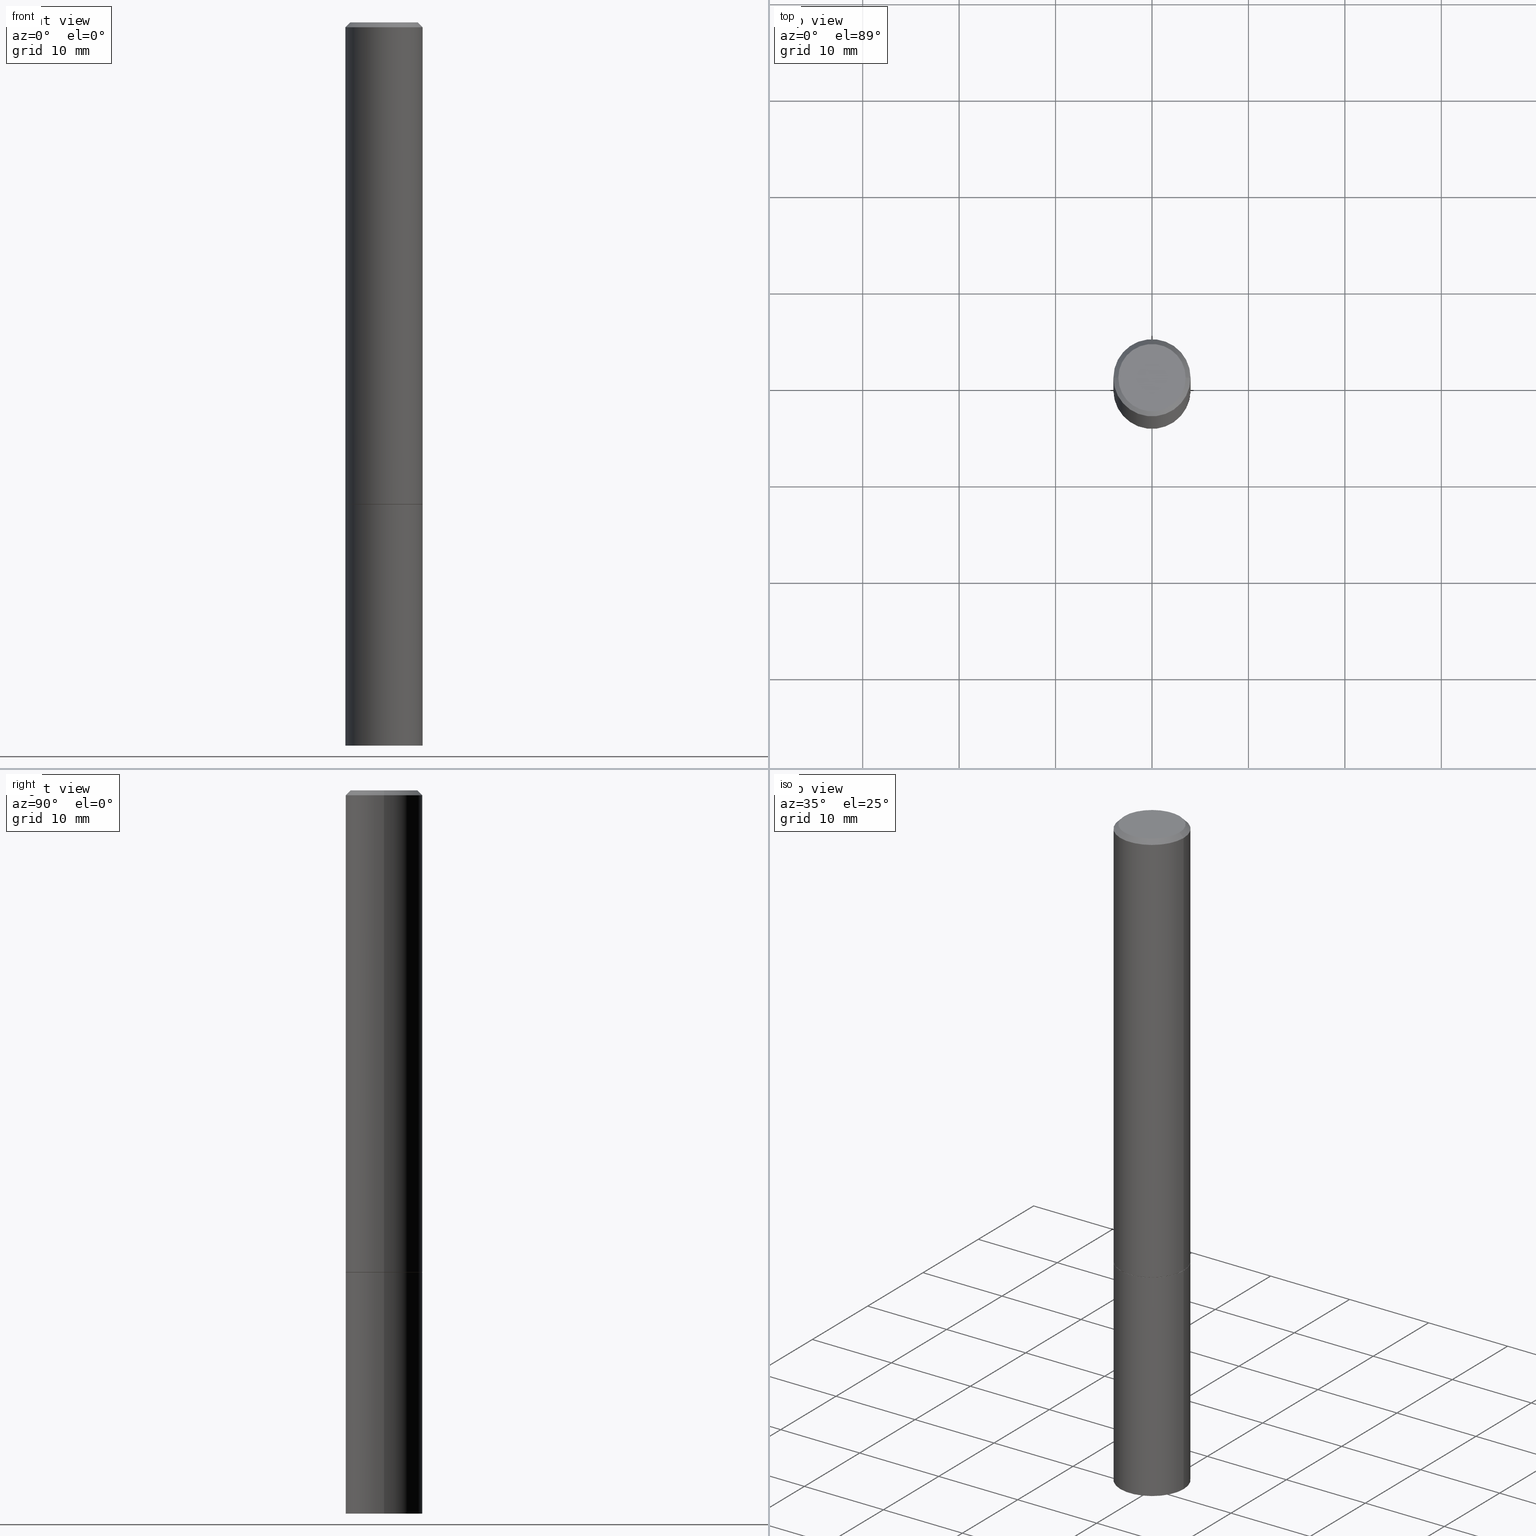
[diagram: canonical four-view strip — front | top / right | iso, engineering-drawing reading convention]
A machine part, canonical four-view strip (front | top / right | iso — engineering-drawing reading convention). The complete STEP part file that produces these views, byte-faithful:
ISO-10303-21;
HEADER;
FILE_DESCRIPTION (( 'STEP AP203' ),
    '1' );
FILE_NAME ('70555.STEP',
    '2024-02-29T03:45:22',
    ( '' ),
    ( '' ),
    'SwSTEP 2.0',
    'SolidWorks 2023',
    '' );
FILE_SCHEMA (( 'CONFIG_CONTROL_DESIGN' ));
ENDSEC;

DATA;
#1 = DIRECTION ( 'NONE',  ( 1.000000000000000000, -6.982962677686261977E-15, 0.000000000000000000 ) ) ;
#2 = ORIENTED_EDGE ( 'NONE', *, *, #163, .T. ) ;
#3 = CALENDAR_DATE ( 2024, 28, 2 ) ;
#4 = PERSON_AND_ORGANIZATION ( #186, #347 ) ;
#5 = AXIS2_PLACEMENT_3D ( 'NONE', #322, #22, #187 ) ;
#6 = CARTESIAN_POINT ( 'NONE',  ( 4.813905344975440714E-29, -6.872981015512730918E-15, -1.968499999999999694 ) ) ;
#7 = EDGE_CURVE ( 'NONE', #41, #267, #106, .T. ) ;
#8 = FACE_OUTER_BOUND ( 'NONE', #237, .T. ) ;
#9 = CARTESIAN_POINT ( 'NONE',  ( 4.811459876169255671E-29, -6.869489534173887122E-15, -1.967499999999999805 ) ) ;
#10 = CARTESIAN_POINT ( 'NONE',  ( 7.220980290903470182E-29, -1.030964609733603853E-14, -2.952799999999999869 ) ) ;
#11 = AXIS2_PLACEMENT_3D ( 'NONE', #257, #98, #302 ) ;
#12 = DIRECTION ( 'NONE',  ( 1.000000000000000000, -6.982962677686265922E-15, 4.876176775795935793E-29 ) ) ;
#13 = VERTEX_POINT ( 'NONE', #139 ) ;
#14 = PERSON_AND_ORGANIZATION ( #186, #347 ) ;
#15 = DIRECTION ( 'NONE',  ( -1.000000000000000000, 6.982962677686266711E-15, 0.000000000000000000 ) ) ;
#16 = CARTESIAN_POINT ( 'NONE',  ( 0.000000000000000000, 0.000000000000000000, 0.000000000000000000 ) ) ;
#17 = ORIENTED_EDGE ( 'NONE', *, *, #274, .F. ) ;
#18 = EDGE_CURVE ( 'NONE', #97, #140, #229, .T. ) ;
#19 =( NAMED_UNIT ( * ) SI_UNIT ( $, .STERADIAN. ) SOLID_ANGLE_UNIT ( ) );
#20 = DIRECTION ( 'NONE',  ( 1.000000000000000000, -6.982962677686267499E-15, 0.000000000000000000 ) ) ;
#21 = ORIENTED_EDGE ( 'NONE', *, *, #281, .T. ) ;
#22 = DIRECTION ( 'NONE',  ( -2.445468806185136597E-29, 3.491481338843145583E-15, 1.000000000000000000 ) ) ;
#23 = APPROVAL_PERSON_ORGANIZATION ( #173, #222, #149 ) ;
#24 = DIRECTION ( 'NONE',  ( -2.445468806185136597E-29, 3.491481338843145583E-15, 1.000000000000000000 ) ) ;
#25 = FACE_OUTER_BOUND ( 'NONE', #355, .T. ) ;
#26 = VECTOR ( 'NONE', #176, 39.37007874015748143 ) ;
#27 = EDGE_CURVE ( 'NONE', #330, #140, #115, .T. ) ;
#28 = EDGE_LOOP ( 'NONE', ( #21, #135 ) ) ;
#29 = LOCAL_TIME ( 22, 45, 22.00000000000000000, #121 ) ;
#30 = FACE_OUTER_BOUND ( 'NONE', #166, .T. ) ;
#31 = COORDINATED_UNIVERSAL_TIME_OFFSET ( 5, 0, .BEHIND. ) ;
#32 = CARTESIAN_POINT ( 'NONE',  ( -0.1575000000000000011, -2.350554771653214846E-15, -1.967499999999999805 ) ) ;
#33 = PERSON_AND_ORGANIZATION_ROLE ( 'design_owner' ) ;
#34 = CYLINDRICAL_SURFACE ( 'NONE', #288, 0.1575000000000000011 ) ;
#35 = ORIENTED_EDGE ( 'NONE', *, *, #56, .T. ) ;
#36 = PRODUCT_DEFINITION_FORMATION_WITH_SPECIFIED_SOURCE ( 'ANY', '', #338, .NOT_KNOWN. ) ;
#37 = CARTESIAN_POINT ( 'NONE',  ( 4.890937612370281041E-31, -6.982962677686302702E-17, -0.02000000000000003511 ) ) ;
#38 = EDGE_CURVE ( 'NONE', #97, #159, #75, .T. ) ;
#39 = CALENDAR_DATE ( 2024, 28, 2 ) ;
#40 = CARTESIAN_POINT ( 'NONE',  ( -2.087702828670435750E-46, 2.980686340760889474E-32, 8.537024980200807150E-18 ) ) ;
#41 = VERTEX_POINT ( 'NONE', #228 ) ;
#42 = DIRECTION ( 'NONE',  ( -2.438088387897960049E-29, 3.491481338843145188E-15, 1.000000000000000000 ) ) ;
#43 = EDGE_CURVE ( 'NONE', #100, #287, #172, .T. ) ;
#44 = DIRECTION ( 'NONE',  ( 1.000000000000000000, -6.982962677686266711E-15, 0.000000000000000000 ) ) ;
#45 = CONICAL_SURFACE ( 'NONE', #11, 0.1565000000000000002, 0.7853981633972775267 ) ;
#46 = ORIENTED_EDGE ( 'NONE', *, *, #18, .F. ) ;
#47 = CIRCLE ( 'NONE', #251, 0.1575000000000000011 ) ;
#48 = CIRCLE ( 'NONE', #87, 0.1574999999999997513 ) ;
#49 = CC_DESIGN_PERSON_AND_ORGANIZATION_ASSIGNMENT ( #14, #238, ( #36 ) ) ;
#50 = CALENDAR_DATE ( 2024, 28, 2 ) ;
#51 = DIRECTION ( 'NONE',  ( -2.445468806185136877E-29, 3.491481338843145188E-15, 1.000000000000000000 ) ) ;
#52 = LOCAL_TIME ( 22, 45, 22.00000000000000000, #89 ) ;
#53 = APPLICATION_CONTEXT ( 'configuration controlled 3d designs of mechanical parts and assemblies' ) ;
#54 = DIRECTION ( 'NONE',  ( 1.000000000000000000, -6.982962677686267499E-15, 0.000000000000000000 ) ) ;
#55 = DIRECTION ( 'NONE',  ( -2.445468806185136597E-29, 3.491481338843145583E-15, 1.000000000000000000 ) ) ;
#56 = EDGE_CURVE ( 'NONE', #151, #287, #112, .T. ) ;
#57 = AXIS2_PLACEMENT_3D ( 'NONE', #99, #260, #158 ) ;
#58 =( GEOMETRIC_REPRESENTATION_CONTEXT ( 3 ) GLOBAL_UNCERTAINTY_ASSIGNED_CONTEXT ( ( #296 ) ) GLOBAL_UNIT_ASSIGNED_CONTEXT ( ( #70, #94, #19 ) ) REPRESENTATION_CONTEXT ( 'NONE', 'WORKASPACE' ) );
#59 = ORIENTED_EDGE ( 'NONE', *, *, #7, .T. ) ;
#60 = CARTESIAN_POINT ( 'NONE',  ( 0.1565000000000000002, -7.965814674570632384E-15, -1.968500000000000139 ) ) ;
#61 = CALENDAR_DATE ( 2024, 28, 2 ) ;
#62 = FACE_OUTER_BOUND ( 'NONE', #275, .T. ) ;
#63 = ORIENTED_EDGE ( 'NONE', *, *, #136, .F. ) ;
#64 = CIRCLE ( 'NONE', #278, 0.1374999999999997613 ) ;
#65 = DIRECTION ( 'NONE',  ( 1.000000000000000000, 0.000000000000000000, 0.000000000000000000 ) ) ;
#66 = MANIFOLD_SOLID_BREP ( 'Body-Move/Copy2[1]', #127 ) ;
#67 = APPROVAL_DATE_TIME ( #155, #170 ) ;
#68 = DIRECTION ( 'NONE',  ( -0.7071067811864267805, 7.493145998869918709E-15, 0.7071067811866682540 ) ) ;
#69 = ORIENTED_EDGE ( 'NONE', *, *, #27, .F. ) ;
#70 =( CONVERSION_BASED_UNIT ( 'INCH', #181 ) LENGTH_UNIT ( ) NAMED_UNIT ( #286 ) );
#71 = LINE ( 'NONE', #148, #335 ) ;
#72 = CALENDAR_DATE ( 2024, 28, 2 ) ;
#73 = VERTEX_POINT ( 'NONE', #196 ) ;
#74 = CIRCLE ( 'NONE', #145, 0.1574999999999997513 ) ;
#75 = CIRCLE ( 'NONE', #363, 0.1575000000000000011 ) ;
#76 = AXIS2_PLACEMENT_3D ( 'NONE', #16, #84, #65 ) ;
#77 = CARTESIAN_POINT ( 'NONE',  ( -2.087702828670435750E-46, 2.980686340760889474E-32, 8.537024980200807150E-18 ) ) ;
#78 = ADVANCED_FACE ( 'NONE', ( #311 ), #113, .F. ) ;
#79 = APPLICATION_CONTEXT ( 'configuration controlled 3d designs of mechanical parts and assemblies' ) ;
#80 = DIRECTION ( 'NONE',  ( -2.445468806185136597E-29, 3.491481338843145583E-15, 1.000000000000000000 ) ) ;
#81 = EDGE_CURVE ( 'NONE', #41, #125, #169, .T. ) ;
#82 = CARTESIAN_POINT ( 'NONE',  ( 4.813905344975441835E-29, -6.872981015512731707E-15, -1.968500000000000139 ) ) ;
#83 = ORIENTED_EDGE ( 'NONE', *, *, #281, .F. ) ;
#84 = DIRECTION ( 'NONE',  ( 0.000000000000000000, 0.000000000000000000, 1.000000000000000000 ) ) ;
#85 = DIRECTION ( 'NONE',  ( -1.000000000000000000, 6.982962677686265922E-15, -4.876176775795935793E-29 ) ) ;
#86 = AXIS2_PLACEMENT_3D ( 'NONE', #6, #253, #282 ) ;
#87 = AXIS2_PLACEMENT_3D ( 'NONE', #304, #107, #44 ) ;
#88 = DIRECTION ( 'NONE',  ( -2.445468806185136597E-29, 3.491481338843145583E-15, 1.000000000000000000 ) ) ;
#89 = COORDINATED_UNIVERSAL_TIME_OFFSET ( 5, 0, .BEHIND. ) ;
#90 = PERSON_AND_ORGANIZATION ( #186, #347 ) ;
#91 = CIRCLE ( 'NONE', #235, 0.1575000000000000011 ) ;
#92 = FACE_OUTER_BOUND ( 'NONE', #123, .T. ) ;
#93 = EDGE_CURVE ( 'NONE', #159, #330, #71, .T. ) ;
#94 =( NAMED_UNIT ( * ) PLANE_ANGLE_UNIT ( ) SI_UNIT ( $, .RADIAN. ) );
#95 = DATE_AND_TIME ( #72, #120 ) ;
#96 = DIRECTION ( 'NONE',  ( -2.445468806185136597E-29, 3.491481338843145583E-15, 1.000000000000000000 ) ) ;
#97 = VERTEX_POINT ( 'NONE', #350 ) ;
#98 = DIRECTION ( 'NONE',  ( -2.445468806185136597E-29, 3.491481338843145583E-15, 1.000000000000000000 ) ) ;
#99 = CARTESIAN_POINT ( 'NONE',  ( 0.000000000000000000, 0.000000000000000000, 0.000000000000000000 ) ) ;
#100 = VERTEX_POINT ( 'NONE', #332 ) ;
#101 = VECTOR ( 'NONE', #150, 39.37007874015748143 ) ;
#102 = DIRECTION ( 'NONE',  ( 0.7071067811864267805, -2.468850131080992517E-15, 0.7071067811866682540 ) ) ;
#103 = ORIENTED_EDGE ( 'NONE', *, *, #320, .T. ) ;
#104 = CARTESIAN_POINT ( 'NONE',  ( -0.1574999999999998901, 1.119104808822157012E-15, -7.747322767151471379E-30 ) ) ;
#105 = EDGE_LOOP ( 'NONE', ( #177, #162, #103, #184 ) ) ;
#106 = CIRCLE ( 'NONE', #248, 0.1565000000000000002 ) ;
#107 = DIRECTION ( 'NONE',  ( -2.445468806185136597E-29, 3.491481338843145583E-15, 1.000000000000000000 ) ) ;
#108 = ORIENTED_EDGE ( 'NONE', *, *, #7, .F. ) ;
#109 = CYLINDRICAL_SURFACE ( 'NONE', #146, 0.1574999999999998901 ) ;
#110 = CIRCLE ( 'NONE', #119, 0.1374999999999997613 ) ;
#111 = EDGE_CURVE ( 'NONE', #267, #151, #245, .T. ) ;
#112 = LINE ( 'NONE', #223, #272 ) ;
#113 = PLANE ( 'NONE',  #132 ) ;
#114 = DIRECTION ( 'NONE',  ( 1.000000000000000000, -6.982962677686267499E-15, 0.000000000000000000 ) ) ;
#115 = CIRCLE ( 'NONE', #86, 0.1575000000000000011 ) ;
#116 = APPROVAL ( #165, 'UNSPECIFIED' ) ;
#117 = ORIENTED_EDGE ( 'NONE', *, *, #215, .T. ) ;
#118 = DIRECTION ( 'NONE',  ( 1.000000000000000000, -6.982962677686265922E-15, 4.876173381029109010E-29 ) ) ;
#119 = AXIS2_PLACEMENT_3D ( 'NONE', #77, #24, #247 ) ;
#120 = LOCAL_TIME ( 22, 45, 22.00000000000000000, #358 ) ;
#121 = COORDINATED_UNIVERSAL_TIME_OFFSET ( 5, 0, .BEHIND. ) ;
#122 = DIRECTION ( 'NONE',  ( 2.438088387897960049E-29, -3.491481338843145188E-15, -1.000000000000000000 ) ) ;
#123 = EDGE_LOOP ( 'NONE', ( #17, #108 ) ) ;
#124 = CARTESIAN_POINT ( 'NONE',  ( 4.813905344975441835E-29, -6.872981015512731707E-15, -1.968500000000000139 ) ) ;
#125 = VERTEX_POINT ( 'NONE', #32 ) ;
#126 = CYLINDRICAL_SURFACE ( 'NONE', #57, 0.1574999999999998901 ) ;
#127 = CLOSED_SHELL ( 'NONE', ( #141, #252, #314, #294 ) ) ;
#128 = PERSON_AND_ORGANIZATION ( #186, #347 ) ;
#129 = FACE_OUTER_BOUND ( 'NONE', #262, .T. ) ;
#130 = ORIENTED_EDGE ( 'NONE', *, *, #147, .T. ) ;
#131 = CARTESIAN_POINT ( 'NONE',  ( 0.000000000000000000, 0.000000000000000000, 0.000000000000000000 ) ) ;
#132 = AXIS2_PLACEMENT_3D ( 'NONE', #225, #345, #85 ) ;
#133 = CC_DESIGN_APPROVAL ( #116, ( #36 ) ) ;
#134 = FACE_OUTER_BOUND ( 'NONE', #171, .T. ) ;
#135 = ORIENTED_EDGE ( 'NONE', *, *, #198, .T. ) ;
#136 = EDGE_CURVE ( 'NONE', #151, #125, #47, .T. ) ;
#137 = DIRECTION ( 'NONE',  ( 0.7071067811865466846, -7.319954787623252890E-15, -0.7071067811865483499 ) ) ;
#138 = AXIS2_PLACEMENT_3D ( 'NONE', #365, #191, #307 ) ;
#139 = CARTESIAN_POINT ( 'NONE',  ( -0.1374999999999997613, 9.950721815702909552E-16, 8.537024980193970869E-18 ) ) ;
#140 = VERTEX_POINT ( 'NONE', #300 ) ;
#141 = ADVANCED_FACE ( 'NONE', ( #153 ), #34, .T. ) ;
#142 = APPLICATION_PROTOCOL_DEFINITION ( 'international standard', 'config_control_design', 1994, #53 ) ;
#143 = DIRECTION ( 'NONE',  ( -2.445468806185136597E-29, 3.491481338843145583E-15, 1.000000000000000000 ) ) ;
#144 = CARTESIAN_POINT ( 'NONE',  ( 7.220980290903470182E-29, -1.030964609733603853E-14, -2.952799999999999869 ) ) ;
#145 = AXIS2_PLACEMENT_3D ( 'NONE', #352, #96, #326 ) ;
#146 = AXIS2_PLACEMENT_3D ( 'NONE', #220, #80, #194 ) ;
#147 = EDGE_CURVE ( 'NONE', #125, #73, #292, .T. ) ;
#148 = CARTESIAN_POINT ( 'NONE',  ( 0.1575000000000000011, -1.099816621735586889E-15, 7.679978421878598033E-30 ) ) ;
#149 = APPROVAL_ROLE ( '' ) ;
#150 = DIRECTION ( 'NONE',  ( -2.445468806185136877E-29, 3.491481338843145188E-15, 1.000000000000000000 ) ) ;
#151 = VERTEX_POINT ( 'NONE', #213 ) ;
#152 = CIRCLE ( 'NONE', #226, 0.1575000000000000011 ) ;
#153 = FACE_OUTER_BOUND ( 'NONE', #348, .T. ) ;
#154 = ORIENTED_EDGE ( 'NONE', *, *, #56, .F. ) ;
#155 = DATE_AND_TIME ( #39, #29 ) ;
#156 = CARTESIAN_POINT ( 'NONE',  ( -0.1574999999999997513, 1.029986994958722210E-15, -0.02000000000000003511 ) ) ;
#157 = ORIENTED_EDGE ( 'NONE', *, *, #27, .T. ) ;
#158 = DIRECTION ( 'NONE',  ( 1.000000000000000000, -6.982962677686266711E-15, 4.876176775795935793E-29 ) ) ;
#159 = VERTEX_POINT ( 'NONE', #303 ) ;
#160 = AXIS2_PLACEMENT_3D ( 'NONE', #37, #264, #15 ) ;
#161 = PRODUCT_DEFINITION_SHAPE ( 'NONE', 'NONE',  #240 ) ;
#162 = ORIENTED_EDGE ( 'NONE', *, *, #43, .T. ) ;
#163 = EDGE_CURVE ( 'NONE', #125, #151, #152, .T. ) ;
#164 = CIRCLE ( 'NONE', #5, 0.1575000000000000011 ) ;
#165 = APPROVAL_STATUS ( 'not_yet_approved' ) ;
#166 = EDGE_LOOP ( 'NONE', ( #323, #83, #208, #200 ) ) ;
#167 = DATE_AND_TIME ( #50, #299 ) ;
#168 = ORIENTED_EDGE ( 'NONE', *, *, #147, .F. ) ;
#169 = LINE ( 'NONE', #333, #346 ) ;
#170 = APPROVAL ( #210, 'UNSPECIFIED' ) ;
#171 = EDGE_LOOP ( 'NONE', ( #46, #205, #212, #297 ) ) ;
#172 = LINE ( 'NONE', #289, #209 ) ;
#173 = PERSON_AND_ORGANIZATION ( #186, #347 ) ;
#174 = PLANE ( 'NONE',  #308 ) ;
#175 = ORIENTED_EDGE ( 'NONE', *, *, #81, .F. ) ;
#176 = DIRECTION ( 'NONE',  ( -0.7071067811865466846, 2.468850131082247989E-15, -0.7071067811865483499 ) ) ;
#177 = ORIENTED_EDGE ( 'NONE', *, *, #198, .F. ) ;
#178 = VECTOR ( 'NONE', #102, 39.37007874015748143 ) ;
#179 = SECURITY_CLASSIFICATION_LEVEL ( 'unclassified' ) ;
#180 = SECURITY_CLASSIFICATION ( '', '', #179 ) ;
#181 = LENGTH_MEASURE_WITH_UNIT ( LENGTH_MEASURE( 0.02539999999999999897 ), #324 );
#182 = DIRECTION ( 'NONE',  ( 1.000000000000000000, -6.982962677686268288E-15, 0.000000000000000000 ) ) ;
#183 = CC_DESIGN_DATE_AND_TIME_ASSIGNMENT ( #95, #325, ( #240 ) ) ;
#184 = ORIENTED_EDGE ( 'NONE', *, *, #230, .F. ) ;
#185 = DIRECTION ( 'NONE',  ( 2.445468806185136597E-29, -3.491481338843145583E-15, -1.000000000000000000 ) ) ;
#186 = PERSON ( 'UNSPECIFIED', 'UNSPECIFIED', 'UNSPECIFIED', ('UNSPECIFIED'), ('UNSPECIFIED'), ('UNSPECIFIED') ) ;
#187 = DIRECTION ( 'NONE',  ( 1.000000000000000000, -6.982962677686268288E-15, 0.000000000000000000 ) ) ;
#188 = APPLICATION_PROTOCOL_DEFINITION ( 'international standard', 'config_control_design', 1994, #79 ) ;
#189 = ORIENTED_EDGE ( 'NONE', *, *, #320, .F. ) ;
#190 = AXIS2_PLACEMENT_3D ( 'NONE', #131, #310, #362 ) ;
#191 = DIRECTION ( 'NONE',  ( 2.438088387897960049E-29, -3.491481338843145188E-15, -1.000000000000000000 ) ) ;
#192 = ADVANCED_BREP_SHAPE_REPRESENTATION ( '70555', ( #66, #193, #76 ), #58 ) ;
#193 = MANIFOLD_SOLID_BREP ( 'Body-Move/Copy2[2]', #221 ) ;
#194 = DIRECTION ( 'NONE',  ( 1.000000000000000000, -6.982962677686266711E-15, 4.876176775795935793E-29 ) ) ;
#195 = CC_DESIGN_APPROVAL ( #222, ( #180 ) ) ;
#196 = CARTESIAN_POINT ( 'NONE',  ( -0.1574999999999997513, 1.029986994958722210E-15, -0.02000000000000003511 ) ) ;
#197 = AXIS2_PLACEMENT_3D ( 'NONE', #82, #143, #54 ) ;
#198 = EDGE_CURVE ( 'NONE', #100, #13, #64, .T. ) ;
#199 = PERSON_AND_ORGANIZATION_ROLE ( 'design_supplier' ) ;
#200 = ORIENTED_EDGE ( 'NONE', *, *, #259, .T. ) ;
#201 = ADVANCED_FACE ( 'NONE', ( #92 ), #202, .F. ) ;
#202 = PLANE ( 'NONE',  #329 ) ;
#203 = ORIENTED_EDGE ( 'NONE', *, *, #361, .T. ) ;
#204 = LINE ( 'NONE', #156, #26 ) ;
#205 = ORIENTED_EDGE ( 'NONE', *, *, #38, .T. ) ;
#206 = DIRECTION ( 'NONE',  ( -2.445468806185136597E-29, 3.491481338843145583E-15, 1.000000000000000000 ) ) ;
#207 = CARTESIAN_POINT ( 'NONE',  ( 4.813905344975441835E-29, -6.872981015512731707E-15, -1.968500000000000139 ) ) ;
#208 = ORIENTED_EDGE ( 'NONE', *, *, #230, .T. ) ;
#209 = VECTOR ( 'NONE', #137, 39.37007874015748143 ) ;
#210 = APPROVAL_STATUS ( 'not_yet_approved' ) ;
#211 = DIRECTION ( 'NONE',  ( -2.445468806185136597E-29, 3.491481338843145583E-15, 1.000000000000000000 ) ) ;
#212 = ORIENTED_EDGE ( 'NONE', *, *, #93, .T. ) ;
#213 = CARTESIAN_POINT ( 'NONE',  ( 0.1575000000000000011, -7.969306155909475391E-15, -1.967499999999999805 ) ) ;
#214 = ORIENTED_EDGE ( 'NONE', *, *, #163, .F. ) ;
#215 = EDGE_CURVE ( 'NONE', #140, #330, #164, .T. ) ;
#216 = PRODUCT_RELATED_PRODUCT_CATEGORY ( 'detail', '', ( #338 ) ) ;
#217 = VECTOR ( 'NONE', #254, 39.37007874015748143 ) ;
#218 = CC_DESIGN_SECURITY_CLASSIFICATION ( #180, ( #36 ) ) ;
#219 = FACE_OUTER_BOUND ( 'NONE', #246, .T. ) ;
#220 = CARTESIAN_POINT ( 'NONE',  ( 0.000000000000000000, 0.000000000000000000, 0.000000000000000000 ) ) ;
#221 = CLOSED_SHELL ( 'NONE', ( #349, #336, #268, #343, #224, #340, #201, #78 ) ) ;
#222 = APPROVAL ( #351, 'UNSPECIFIED' ) ;
#223 = CARTESIAN_POINT ( 'NONE',  ( 0.1574999999999998901, -1.099816621735586297E-15, 7.679978421878593829E-30 ) ) ;
#224 = ADVANCED_FACE ( 'NONE', ( #62 ), #126, .T. ) ;
#225 = CARTESIAN_POINT ( 'NONE',  ( 9.601573681818598978E-16, 0.1374999999999997613, -4.758101716008312971E-16 ) ) ;
#226 = AXIS2_PLACEMENT_3D ( 'NONE', #9, #270, #356 ) ;
#227 = DATE_AND_TIME ( #3, #52 ) ;
#228 = CARTESIAN_POINT ( 'NONE',  ( -0.1565000000000000002, -5.755683179699952710E-15, -1.968500000000000139 ) ) ;
#229 = LINE ( 'NONE', #318, #217 ) ;
#230 = EDGE_CURVE ( 'NONE', #13, #73, #204, .T. ) ;
#231 = DATE_AND_TIME ( #61, #273 ) ;
#232 = DIRECTION ( 'NONE',  ( -2.445468806185136597E-29, 3.491481338843145583E-15, 1.000000000000000000 ) ) ;
#233 = CIRCLE ( 'NONE', #283, 0.1565000000000000002 ) ;
#234 = ORIENTED_EDGE ( 'NONE', *, *, #274, .T. ) ;
#235 = AXIS2_PLACEMENT_3D ( 'NONE', #10, #206, #331 ) ;
#236 = DIRECTION ( 'NONE',  ( -1.000000000000000000, 6.982962677686265922E-15, -4.876176775795935793E-29 ) ) ;
#237 = EDGE_LOOP ( 'NONE', ( #234, #244, #63, #344 ) ) ;
#238 = PERSON_AND_ORGANIZATION_ROLE ( 'creator' ) ;
#239 = MECHANICAL_CONTEXT ( 'NONE', #53, 'mechanical' ) ;
#240 = PRODUCT_DEFINITION ( 'UNKNOWN', '', #36, #277 ) ;
#241 = DIRECTION ( 'NONE',  ( 1.000000000000000000, -6.982962677686265922E-15, 4.876176775795935232E-29 ) ) ;
#242 = ORIENTED_EDGE ( 'NONE', *, *, #111, .T. ) ;
#243 = FACE_OUTER_BOUND ( 'NONE', #105, .T. ) ;
#244 = ORIENTED_EDGE ( 'NONE', *, *, #81, .T. ) ;
#245 = LINE ( 'NONE', #60, #178 ) ;
#246 = EDGE_LOOP ( 'NONE', ( #315, #130, #189, #154 ) ) ;
#247 = DIRECTION ( 'NONE',  ( 1.000000000000000000, -6.982962677686265922E-15, 4.876173381029109010E-29 ) ) ;
#248 = AXIS2_PLACEMENT_3D ( 'NONE', #313, #88, #114 ) ;
#249 = CARTESIAN_POINT ( 'NONE',  ( 0.1574999999999997513, -1.150358061425877697E-15, -0.02000000000000003511 ) ) ;
#250 = CC_DESIGN_PERSON_AND_ORGANIZATION_ASSIGNMENT ( #4, #290, ( #180 ) ) ;
#251 = AXIS2_PLACEMENT_3D ( 'NONE', #328, #258, #182 ) ;
#252 = ADVANCED_FACE ( 'NONE', ( #129 ), #174, .T. ) ;
#253 = DIRECTION ( 'NONE',  ( -2.445468806185136597E-29, 3.491481338843145583E-15, 1.000000000000000000 ) ) ;
#254 = DIRECTION ( 'NONE',  ( -2.445468806185136877E-29, 3.491481338843145188E-15, 1.000000000000000000 ) ) ;
#255 = CONICAL_SURFACE ( 'NONE', #342, 0.1574999999999997513, 0.7853981633974471688 ) ;
#256 = APPROVAL_DATE_TIME ( #227, #222 ) ;
#257 = CARTESIAN_POINT ( 'NONE',  ( 4.813905344975441835E-29, -6.872981015512731707E-15, -1.968500000000000139 ) ) ;
#258 = DIRECTION ( 'NONE',  ( -2.445468806185136597E-29, 3.491481338843145583E-15, 1.000000000000000000 ) ) ;
#259 = EDGE_CURVE ( 'NONE', #73, #287, #74, .T. ) ;
#260 = DIRECTION ( 'NONE',  ( -2.445468806185136597E-29, 3.491481338843145583E-15, 1.000000000000000000 ) ) ;
#261 = CC_DESIGN_PERSON_AND_ORGANIZATION_ASSIGNMENT ( #321, #33, ( #338 ) ) ;
#262 = EDGE_LOOP ( 'NONE', ( #301, #357 ) ) ;
#263 = APPROVAL_ROLE ( '' ) ;
#264 = DIRECTION ( 'NONE',  ( 2.445468806185136597E-29, -3.491481338843145583E-15, -1.000000000000000000 ) ) ;
#265 = ORIENTED_EDGE ( 'NONE', *, *, #93, .F. ) ;
#266 = DIRECTION ( 'NONE',  ( -2.445468806185136597E-29, 3.491481338843145583E-15, 1.000000000000000000 ) ) ;
#267 = VERTEX_POINT ( 'NONE', #298 ) ;
#268 = ADVANCED_FACE ( 'NONE', ( #243 ), #317, .T. ) ;
#269 = PERSON_AND_ORGANIZATION_ROLE ( 'creator' ) ;
#270 = DIRECTION ( 'NONE',  ( -2.445468806185136597E-29, 3.491481338843145583E-15, 1.000000000000000000 ) ) ;
#271 = ORIENTED_EDGE ( 'NONE', *, *, #18, .T. ) ;
#272 = VECTOR ( 'NONE', #51, 39.37007874015748143 ) ;
#273 = LOCAL_TIME ( 22, 45, 22.00000000000000000, #31 ) ;
#274 = EDGE_CURVE ( 'NONE', #267, #41, #233, .T. ) ;
#275 = EDGE_LOOP ( 'NONE', ( #168, #2, #35, #305 ) ) ;
#276 = CC_DESIGN_PERSON_AND_ORGANIZATION_ASSIGNMENT ( #128, #269, ( #240 ) ) ;
#277 = DESIGN_CONTEXT ( 'detailed design', #79, 'design' ) ;
#278 = AXIS2_PLACEMENT_3D ( 'NONE', #40, #211, #118 ) ;
#279 = PLANE ( 'NONE',  #138 ) ;
#280 = APPROVAL_DATE_TIME ( #167, #116 ) ;
#281 = EDGE_CURVE ( 'NONE', #13, #100, #110, .T. ) ;
#282 = DIRECTION ( 'NONE',  ( 1.000000000000000000, -6.982962677686268288E-15, 0.000000000000000000 ) ) ;
#283 = AXIS2_PLACEMENT_3D ( 'NONE', #207, #266, #20 ) ;
#284 = CC_DESIGN_APPROVAL ( #170, ( #240 ) ) ;
#285 = PERSON_AND_ORGANIZATION ( #186, #347 ) ;
#286 = DIMENSIONAL_EXPONENTS ( 1.000000000000000000, 0.000000000000000000, 0.000000000000000000, 0.000000000000000000, 0.000000000000000000, 0.000000000000000000, 0.000000000000000000 ) ;
#287 = VERTEX_POINT ( 'NONE', #249 ) ;
#288 = AXIS2_PLACEMENT_3D ( 'NONE', #359, #232, #241 ) ;
#289 = CARTESIAN_POINT ( 'NONE',  ( 0.1574999999999997513, -1.150358061425877697E-15, -0.02000000000000003511 ) ) ;
#290 = PERSON_AND_ORGANIZATION_ROLE ( 'classification_officer' ) ;
#291 = CC_DESIGN_PERSON_AND_ORGANIZATION_ASSIGNMENT ( #90, #199, ( #36 ) ) ;
#292 = LINE ( 'NONE', #104, #101 ) ;
#293 = DIRECTION ( 'NONE',  ( -1.000000000000000000, 6.982962677686266711E-15, 0.000000000000000000 ) ) ;
#294 = ADVANCED_FACE ( 'NONE', ( #134 ), #364, .T. ) ;
#295 = CARTESIAN_POINT ( 'NONE',  ( 1.099816621735659069E-15, 0.1574999999999896760, -2.952800000000000313 ) ) ;
#296 = UNCERTAINTY_MEASURE_WITH_UNIT (LENGTH_MEASURE( 1.000000000000000082E-05 ), #70, 'distance_accuracy_value', 'NONE');
#297 = ORIENTED_EDGE ( 'NONE', *, *, #215, .F. ) ;
#298 = CARTESIAN_POINT ( 'NONE',  ( 0.1565000000000000002, -7.965814674570632384E-15, -1.968500000000000139 ) ) ;
#299 = LOCAL_TIME ( 22, 45, 22.00000000000000000, #341 ) ;
#300 = CARTESIAN_POINT ( 'NONE',  ( -0.1575000000000000011, -7.472208747602227514E-15, -1.968499999999999694 ) ) ;
#301 = ORIENTED_EDGE ( 'NONE', *, *, #361, .F. ) ;
#302 = DIRECTION ( 'NONE',  ( 1.000000000000000000, -6.982962677686267499E-15, 0.000000000000000000 ) ) ;
#303 = CARTESIAN_POINT ( 'NONE',  ( 0.1575000000000000011, -1.140946271907162522E-14, -2.952799999999999869 ) ) ;
#304 = CARTESIAN_POINT ( 'NONE',  ( 4.890937612370281041E-31, -6.982962677686302702E-17, -0.02000000000000003511 ) ) ;
#305 = ORIENTED_EDGE ( 'NONE', *, *, #259, .F. ) ;
#306 = CC_DESIGN_DATE_AND_TIME_ASSIGNMENT ( #231, #319, ( #180 ) ) ;
#307 = DIRECTION ( 'NONE',  ( -1.000000000000000000, 6.982962677686265922E-15, -4.876176775795935793E-29 ) ) ;
#308 = AXIS2_PLACEMENT_3D ( 'NONE', #295, #122, #236 ) ;
#309 = APPROVAL_PERSON_ORGANIZATION ( #327, #170, #263 ) ;
#310 = DIRECTION ( 'NONE',  ( -2.445468806185136597E-29, 3.491481338843145583E-15, 1.000000000000000000 ) ) ;
#311 = FACE_OUTER_BOUND ( 'NONE', #28, .T. ) ;
#312 = APPROVAL_PERSON_ORGANIZATION ( #285, #116, #366 ) ;
#313 = CARTESIAN_POINT ( 'NONE',  ( 4.813905344975441835E-29, -6.872981015512731707E-15, -1.968500000000000139 ) ) ;
#314 = ADVANCED_FACE ( 'NONE', ( #360 ), #279, .F. ) ;
#315 = ORIENTED_EDGE ( 'NONE', *, *, #136, .T. ) ;
#316 = SHAPE_DEFINITION_REPRESENTATION ( #161, #192 ) ;
#317 = CONICAL_SURFACE ( 'NONE', #160, 0.1574999999999997513, 0.7853981633974471688 ) ;
#318 = CARTESIAN_POINT ( 'NONE',  ( -0.1575000000000000011, 1.119104808822157801E-15, -7.747322767151475583E-30 ) ) ;
#319 = DATE_TIME_ROLE ( 'classification_date' ) ;
#320 = EDGE_CURVE ( 'NONE', #287, #73, #48, .T. ) ;
#321 = PERSON_AND_ORGANIZATION ( #186, #347 ) ;
#322 = CARTESIAN_POINT ( 'NONE',  ( 4.813905344975440714E-29, -6.872981015512730918E-15, -1.968499999999999694 ) ) ;
#323 = ORIENTED_EDGE ( 'NONE', *, *, #43, .F. ) ;
#324 =( LENGTH_UNIT ( ) NAMED_UNIT ( * ) SI_UNIT ( $, .METRE. ) );
#325 = DATE_TIME_ROLE ( 'creation_date' ) ;
#326 = DIRECTION ( 'NONE',  ( 1.000000000000000000, -6.982962677686266711E-15, 0.000000000000000000 ) ) ;
#327 = PERSON_AND_ORGANIZATION ( #186, #347 ) ;
#328 = CARTESIAN_POINT ( 'NONE',  ( 4.811459876169255671E-29, -6.869489534173887122E-15, -1.967499999999999805 ) ) ;
#329 = AXIS2_PLACEMENT_3D ( 'NONE', #124, #42, #12 ) ;
#330 = VERTEX_POINT ( 'NONE', #339 ) ;
#331 = DIRECTION ( 'NONE',  ( 1.000000000000000000, -6.982962677686261977E-15, 0.000000000000000000 ) ) ;
#332 = CARTESIAN_POINT ( 'NONE',  ( 0.1374999999999997613, -1.046838268059730717E-15, 8.537024980207825239E-18 ) ) ;
#333 = CARTESIAN_POINT ( 'NONE',  ( -0.1565000000000000002, -5.760981634048175901E-15, -1.968500000000000139 ) ) ;
#334 = EDGE_LOOP ( 'NONE', ( #157, #117 ) ) ;
#335 = VECTOR ( 'NONE', #354, 39.37007874015748143 ) ;
#336 = ADVANCED_FACE ( 'NONE', ( #219 ), #109, .T. ) ;
#337 = CONICAL_SURFACE ( 'NONE', #197, 0.1565000000000000002, 0.7853981633972775267 ) ;
#338 = PRODUCT ( '70555', '70555', '', ( #239 ) ) ;
#339 = CARTESIAN_POINT ( 'NONE',  ( 0.1575000000000000011, -7.972797637248318399E-15, -1.968499999999999694 ) ) ;
#340 = ADVANCED_FACE ( 'NONE', ( #25 ), #337, .T. ) ;
#341 = COORDINATED_UNIVERSAL_TIME_OFFSET ( 5, 0, .BEHIND. ) ;
#342 = AXIS2_PLACEMENT_3D ( 'NONE', #353, #185, #293 ) ;
#343 = ADVANCED_FACE ( 'NONE', ( #30 ), #255, .T. ) ;
#344 = ORIENTED_EDGE ( 'NONE', *, *, #111, .F. ) ;
#345 = DIRECTION ( 'NONE',  ( 2.438088387897960049E-29, -3.491481338843145188E-15, -1.000000000000000000 ) ) ;
#346 = VECTOR ( 'NONE', #68, 39.37007874015748143 ) ;
#347 = ORGANIZATION ( 'UNSPECIFIED', 'UNSPECIFIED', '' ) ;
#348 = EDGE_LOOP ( 'NONE', ( #203, #271, #69, #265 ) ) ;
#349 = ADVANCED_FACE ( 'NONE', ( #8 ), #45, .T. ) ;
#350 = CARTESIAN_POINT ( 'NONE',  ( -0.1575000000000000011, -7.472208747602227514E-15, -2.952799999999999869 ) ) ;
#351 = APPROVAL_STATUS ( 'not_yet_approved' ) ;
#352 = CARTESIAN_POINT ( 'NONE',  ( 4.890937612370281041E-31, -6.982962677686302702E-17, -0.02000000000000003511 ) ) ;
#353 = CARTESIAN_POINT ( 'NONE',  ( 4.890937612370281041E-31, -6.982962677686302702E-17, -0.02000000000000003511 ) ) ;
#354 = DIRECTION ( 'NONE',  ( -2.445468806185136877E-29, 3.491481338843145188E-15, 1.000000000000000000 ) ) ;
#355 = EDGE_LOOP ( 'NONE', ( #175, #59, #242, #214 ) ) ;
#356 = DIRECTION ( 'NONE',  ( 1.000000000000000000, -6.982962677686268288E-15, 0.000000000000000000 ) ) ;
#357 = ORIENTED_EDGE ( 'NONE', *, *, #38, .F. ) ;
#358 = COORDINATED_UNIVERSAL_TIME_OFFSET ( 5, 0, .BEHIND. ) ;
#359 = CARTESIAN_POINT ( 'NONE',  ( 0.000000000000000000, 0.000000000000000000, 0.000000000000000000 ) ) ;
#360 = FACE_OUTER_BOUND ( 'NONE', #334, .T. ) ;
#361 = EDGE_CURVE ( 'NONE', #159, #97, #91, .T. ) ;
#362 = DIRECTION ( 'NONE',  ( 1.000000000000000000, -6.982962677686265922E-15, 4.876176775795935232E-29 ) ) ;
#363 = AXIS2_PLACEMENT_3D ( 'NONE', #144, #55, #1 ) ;
#364 = CYLINDRICAL_SURFACE ( 'NONE', #190, 0.1575000000000000011 ) ;
#365 = CARTESIAN_POINT ( 'NONE',  ( 1.099816621735634812E-15, 0.1574999999999931177, -1.968500000000000361 ) ) ;
#366 = APPROVAL_ROLE ( '' ) ;
ENDSEC;
END-ISO-10303-21;
